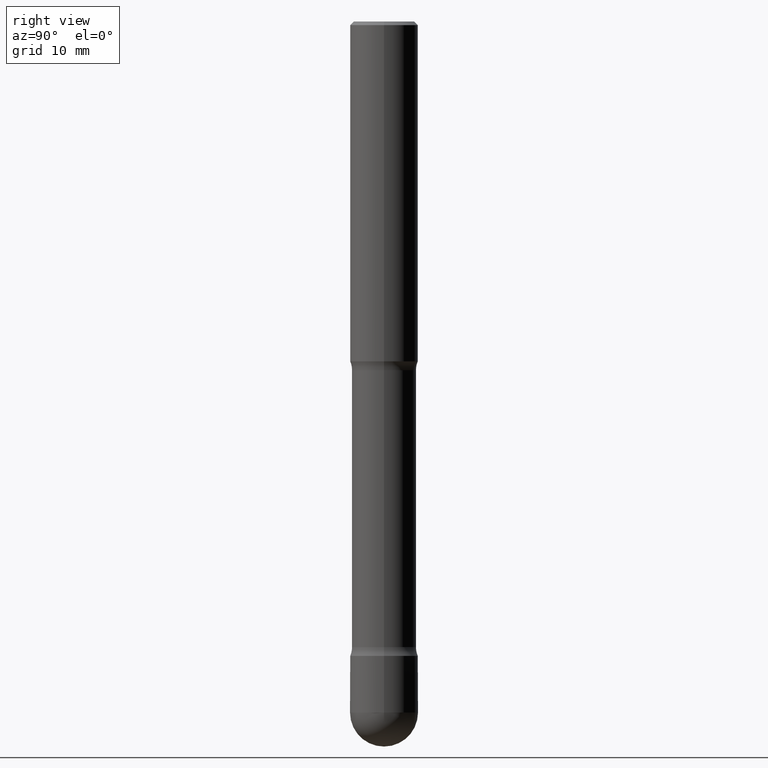
[diagram: clean part render]
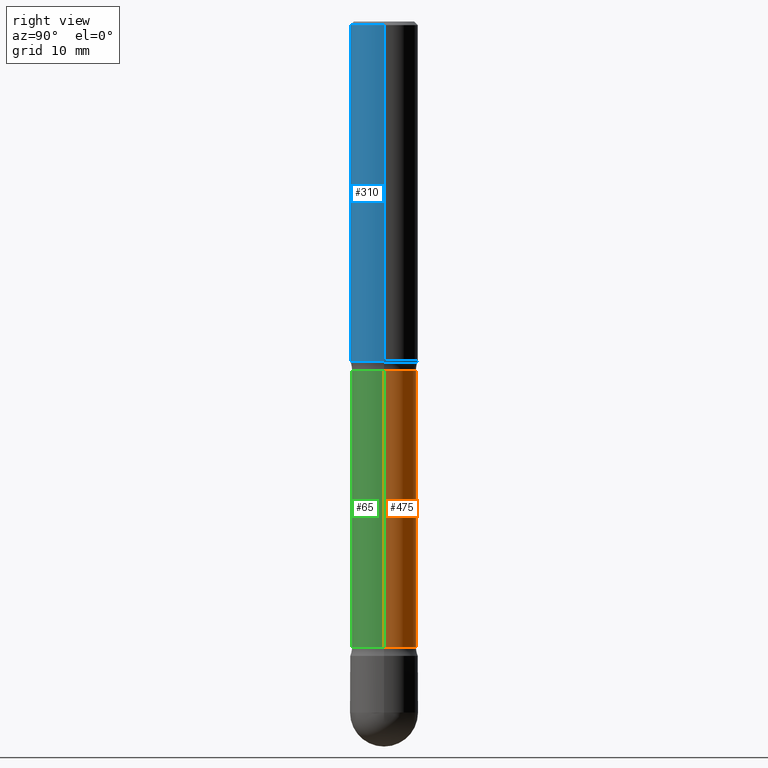
[diagram: same view with three faces highlighted in distinct colors, each labeled with its STEP entity id]
A machine part, right view with three faces highlighted in distinct colors.
Their STEP definitions:

[orange] entity #475 — the highlighted cylindrical surface (edge-blend (fillet) strip) has radius 4.5085 mm, axis along (0, -0, -1).
#12 = CARTESIAN_POINT ( 'NONE',  ( 8.559140821647976968E-29, -1.222018468595100934E-14, -3.500000000000000000 ) ) ;
#73 = AXIS2_PLACEMENT_3D ( 'NONE', #299, #513, #81 ) ;
#80 = ORIENTED_EDGE ( 'NONE', *, *, #250, .F. ) ;
#81 = DIRECTION ( 'NONE',  ( -1.000000000000000000, 6.982962677686269077E-15, 0.000000000000000000 ) ) ;
#96 = EDGE_CURVE ( 'NONE', #348, #301, #288, .T. ) ;
#141 = FACE_OUTER_BOUND ( 'NONE', #315, .T. ) ;
#144 = VERTEX_POINT ( 'NONE', #247 ) ;
#150 = CYLINDRICAL_SURFACE ( 'NONE', #403, 0.1774999999999998246 ) ;
#152 = CARTESIAN_POINT ( 'NONE',  ( 0.1774999999999998246, -1.343792308055545500E-14, -3.500000000000000000 ) ) ;
#177 = CARTESIAN_POINT ( 'NONE',  ( 0.1774999999999996025, -7.884091872190356263E-15, -1.923989794855663904 ) ) ;
#180 = ORIENTED_EDGE ( 'NONE', *, *, #560, .T. ) ;
#183 = LINE ( 'NONE', #286, #484 ) ;
#185 = CARTESIAN_POINT ( 'NONE',  ( 4.705057026738065659E-29, -6.717574464863202053E-15, -1.923989794855663904 ) ) ;
#192 = DIRECTION ( 'NONE',  ( 2.445468806185136597E-29, -3.491481338843145583E-15, -1.000000000000000000 ) ) ;
#214 = ORIENTED_EDGE ( 'NONE', *, *, #96, .T. ) ;
#247 = CARTESIAN_POINT ( 'NONE',  ( -0.1775000000000000189, -1.080966185612939350E-14, -3.451010205144336762 ) ) ;
#250 = EDGE_CURVE ( 'NONE', #144, #301, #556, .T. ) ;
#286 = CARTESIAN_POINT ( 'NONE',  ( -0.1774999999999998246, -1.098070881066169763E-14, -3.500000000000000000 ) ) ;
#288 = LINE ( 'NONE', #152, #420 ) ;
#289 = DIRECTION ( 'NONE',  ( -1.000000000000000000, 6.982962677686269077E-15, 0.000000000000000000 ) ) ;
#299 = CARTESIAN_POINT ( 'NONE',  ( 8.439337806507044109E-29, -1.204913773141870678E-14, -3.451010205144336762 ) ) ;
#301 = VERTEX_POINT ( 'NONE', #384 ) ;
#315 = EDGE_LOOP ( 'NONE', ( #180, #214, #80, #344 ) ) ;
#316 = DIRECTION ( 'NONE',  ( 2.445468806185136877E-29, -3.491481338843145188E-15, -1.000000000000000000 ) ) ;
#317 = AXIS2_PLACEMENT_3D ( 'NONE', #185, #501, #289 ) ;
#322 = VERTEX_POINT ( 'NONE', #342 ) ;
#342 = CARTESIAN_POINT ( 'NONE',  ( -0.1774999999999996025, -5.478098589573891921E-15, -1.923989794855663904 ) ) ;
#344 = ORIENTED_EDGE ( 'NONE', *, *, #506, .F. ) ;
#348 = VERTEX_POINT ( 'NONE', #177 ) ;
#384 = CARTESIAN_POINT ( 'NONE',  ( 0.1775000000000000189, -1.060109449274539731E-14, -3.451010205144336762 ) ) ;
#397 = DIRECTION ( 'NONE',  ( -1.000000000000000000, 6.982962677686265922E-15, 0.000000000000000000 ) ) ;
#403 = AXIS2_PLACEMENT_3D ( 'NONE', #12, #192, #397 ) ;
#420 = VECTOR ( 'NONE', #543, 39.37007874015748143 ) ;
#430 = CIRCLE ( 'NONE', #317, 0.1774999999999996025 ) ;
#475 = ADVANCED_FACE ( 'NONE', ( #141 ), #150, .T. ) ;
#484 = VECTOR ( 'NONE', #316, 39.37007874015748143 ) ;
#501 = DIRECTION ( 'NONE',  ( 2.445468806185136597E-29, -3.491481338843145583E-15, -1.000000000000000000 ) ) ;
#506 = EDGE_CURVE ( 'NONE', #322, #144, #183, .T. ) ;
#513 = DIRECTION ( 'NONE',  ( 2.445468806185136597E-29, -3.491481338843145583E-15, -1.000000000000000000 ) ) ;
#543 = DIRECTION ( 'NONE',  ( 2.445468806185136877E-29, -3.491481338843145188E-15, -1.000000000000000000 ) ) ;
#556 = CIRCLE ( 'NONE', #73, 0.1775000000000000189 ) ;
#560 = EDGE_CURVE ( 'NONE', #322, #348, #430, .T. ) ;

[blue] entity #310 — the highlighted cylindrical surface (edge-blend (fillet) strip) has radius 4.7625 mm, axis along (0, -0, -1).
#1 = VECTOR ( 'NONE', #376, 39.37007874015748143 ) ;
#9 = CARTESIAN_POINT ( 'NONE',  ( 0.1874999999999997502, -1.356173001359022508E-15, -0.01999999999999978531 ) ) ;
#33 = CYLINDRICAL_SURFACE ( 'NONE', #273, 0.1874999999999998890 ) ;
#63 = EDGE_CURVE ( 'NONE', #382, #125, #131, .T. ) ;
#98 = CARTESIAN_POINT ( 'NONE',  ( 0.1875000000000000278, -4.594521943136043171E-15, -1.875000000000001776 ) ) ;
#104 = DIRECTION ( 'NONE',  ( -1.000000000000000000, 6.982962677686266711E-15, 0.000000000000000000 ) ) ;
#108 = LINE ( 'NONE', #203, #459 ) ;
#117 = EDGE_CURVE ( 'NONE', #481, #382, #108, .T. ) ;
#125 = VERTEX_POINT ( 'NONE', #539 ) ;
#127 = CARTESIAN_POINT ( 'NONE',  ( 8.559140821647976968E-29, -1.222018468595100934E-14, -3.500000000000000000 ) ) ;
#131 = CIRCLE ( 'NONE', #318, 0.1875000000000000278 ) ;
#154 = AXIS2_PLACEMENT_3D ( 'NONE', #237, #527, #320 ) ;
#155 = LINE ( 'NONE', #330, #1 ) ;
#176 = EDGE_CURVE ( 'NONE', #514, #125, #155, .T. ) ;
#193 = ORIENTED_EDGE ( 'NONE', *, *, #117, .F. ) ;
#194 = CARTESIAN_POINT ( 'NONE',  ( -0.1874999999999997502, 1.239475875289310921E-15, -0.01999999999999978531 ) ) ;
#203 = CARTESIAN_POINT ( 'NONE',  ( 0.1874999999999998890, -1.350652806053316993E-14, -3.500000000000000000 ) ) ;
#228 = EDGE_LOOP ( 'NONE', ( #193, #307, #405, #359 ) ) ;
#237 = CARTESIAN_POINT ( 'NONE',  ( 4.890937612370220610E-31, -6.982962677686216421E-17, -0.01999999999999978531 ) ) ;
#260 = DIRECTION ( 'NONE',  ( 2.445468806185136597E-29, -3.491481338843145583E-15, -1.000000000000000000 ) ) ;
#273 = AXIS2_PLACEMENT_3D ( 'NONE', #127, #260, #561 ) ;
#307 = ORIENTED_EDGE ( 'NONE', *, *, #422, .T. ) ;
#310 = ADVANCED_FACE ( 'NONE', ( #345 ), #33, .T. ) ;
#318 = AXIS2_PLACEMENT_3D ( 'NONE', #478, #324, #104 ) ;
#320 = DIRECTION ( 'NONE',  ( -1.000000000000000000, 6.982962677686265133E-15, 0.000000000000000000 ) ) ;
#324 = DIRECTION ( 'NONE',  ( 2.445468806185136597E-29, -3.491481338843145583E-15, -1.000000000000000000 ) ) ;
#330 = CARTESIAN_POINT ( 'NONE',  ( -0.1874999999999998890, -1.091087918388483433E-14, -3.500000000000000000 ) ) ;
#345 = FACE_OUTER_BOUND ( 'NONE', #228, .T. ) ;
#359 = ORIENTED_EDGE ( 'NONE', *, *, #63, .F. ) ;
#374 = DIRECTION ( 'NONE',  ( 2.445468806185136877E-29, -3.491481338843145188E-15, -1.000000000000000000 ) ) ;
#376 = DIRECTION ( 'NONE',  ( 2.445468806185136877E-29, -3.491481338843145188E-15, -1.000000000000000000 ) ) ;
#382 = VERTEX_POINT ( 'NONE', #98 ) ;
#393 = CIRCLE ( 'NONE', #154, 0.1874999999999997502 ) ;
#405 = ORIENTED_EDGE ( 'NONE', *, *, #176, .T. ) ;
#422 = EDGE_CURVE ( 'NONE', #481, #514, #393, .T. ) ;
#459 = VECTOR ( 'NONE', #374, 39.37007874015748143 ) ;
#478 = CARTESIAN_POINT ( 'NONE',  ( 4.585254011597135603E-29, -6.546527510330903440E-15, -1.875000000000001776 ) ) ;
#481 = VERTEX_POINT ( 'NONE', #9 ) ;
#514 = VERTEX_POINT ( 'NONE', #194 ) ;
#527 = DIRECTION ( 'NONE',  ( 2.445468806185136597E-29, -3.491481338843145583E-15, -1.000000000000000000 ) ) ;
#539 = CARTESIAN_POINT ( 'NONE',  ( -0.1875000000000000278, -5.237222008264728432E-15, -1.875000000000001776 ) ) ;
#561 = DIRECTION ( 'NONE',  ( -1.000000000000000000, 6.982962677686266711E-15, 0.000000000000000000 ) ) ;

[green] entity #65 — the highlighted cylindrical surface (edge-blend (fillet) strip) has radius 4.5085 mm, axis along (0, -0, -1).
#25 = AXIS2_PLACEMENT_3D ( 'NONE', #50, #59, #323 ) ;
#28 = DIRECTION ( 'NONE',  ( -1.000000000000000000, 6.982962677686265922E-15, 0.000000000000000000 ) ) ;
#50 = CARTESIAN_POINT ( 'NONE',  ( 8.439337806507044109E-29, -1.204913773141870678E-14, -3.451010205144336762 ) ) ;
#59 = DIRECTION ( 'NONE',  ( 2.445468806185136597E-29, -3.491481338843145583E-15, -1.000000000000000000 ) ) ;
#60 = AXIS2_PLACEMENT_3D ( 'NONE', #373, #157, #28 ) ;
#65 = ADVANCED_FACE ( 'NONE', ( #182 ), #355, .T. ) ;
#96 = EDGE_CURVE ( 'NONE', #348, #301, #288, .T. ) ;
#144 = VERTEX_POINT ( 'NONE', #247 ) ;
#152 = CARTESIAN_POINT ( 'NONE',  ( 0.1774999999999998246, -1.343792308055545500E-14, -3.500000000000000000 ) ) ;
#157 = DIRECTION ( 'NONE',  ( 2.445468806185136597E-29, -3.491481338843145583E-15, -1.000000000000000000 ) ) ;
#163 = CARTESIAN_POINT ( 'NONE',  ( 4.705057026738065659E-29, -6.717574464863202053E-15, -1.923989794855663904 ) ) ;
#177 = CARTESIAN_POINT ( 'NONE',  ( 0.1774999999999996025, -7.884091872190356263E-15, -1.923989794855663904 ) ) ;
#178 = ORIENTED_EDGE ( 'NONE', *, *, #506, .T. ) ;
#182 = FACE_OUTER_BOUND ( 'NONE', #474, .T. ) ;
#183 = LINE ( 'NONE', #286, #484 ) ;
#188 = CIRCLE ( 'NONE', #483, 0.1774999999999996025 ) ;
#189 = EDGE_CURVE ( 'NONE', #348, #322, #188, .T. ) ;
#247 = CARTESIAN_POINT ( 'NONE',  ( -0.1775000000000000189, -1.080966185612939350E-14, -3.451010205144336762 ) ) ;
#274 = ORIENTED_EDGE ( 'NONE', *, *, #96, .F. ) ;
#286 = CARTESIAN_POINT ( 'NONE',  ( -0.1774999999999998246, -1.098070881066169763E-14, -3.500000000000000000 ) ) ;
#288 = LINE ( 'NONE', #152, #420 ) ;
#301 = VERTEX_POINT ( 'NONE', #384 ) ;
#316 = DIRECTION ( 'NONE',  ( 2.445468806185136877E-29, -3.491481338843145188E-15, -1.000000000000000000 ) ) ;
#322 = VERTEX_POINT ( 'NONE', #342 ) ;
#323 = DIRECTION ( 'NONE',  ( -1.000000000000000000, 6.982962677686269077E-15, 0.000000000000000000 ) ) ;
#329 = CIRCLE ( 'NONE', #25, 0.1775000000000000189 ) ;
#333 = DIRECTION ( 'NONE',  ( 2.445468806185136597E-29, -3.491481338843145583E-15, -1.000000000000000000 ) ) ;
#342 = CARTESIAN_POINT ( 'NONE',  ( -0.1774999999999996025, -5.478098589573891921E-15, -1.923989794855663904 ) ) ;
#348 = VERTEX_POINT ( 'NONE', #177 ) ;
#355 = CYLINDRICAL_SURFACE ( 'NONE', #60, 0.1774999999999998246 ) ;
#373 = CARTESIAN_POINT ( 'NONE',  ( 8.559140821647976968E-29, -1.222018468595100934E-14, -3.500000000000000000 ) ) ;
#380 = ORIENTED_EDGE ( 'NONE', *, *, #402, .F. ) ;
#384 = CARTESIAN_POINT ( 'NONE',  ( 0.1775000000000000189, -1.060109449274539731E-14, -3.451010205144336762 ) ) ;
#402 = EDGE_CURVE ( 'NONE', #301, #144, #329, .T. ) ;
#415 = DIRECTION ( 'NONE',  ( -1.000000000000000000, 6.982962677686269077E-15, 0.000000000000000000 ) ) ;
#420 = VECTOR ( 'NONE', #543, 39.37007874015748143 ) ;
#474 = EDGE_LOOP ( 'NONE', ( #274, #552, #178, #380 ) ) ;
#483 = AXIS2_PLACEMENT_3D ( 'NONE', #163, #333, #415 ) ;
#484 = VECTOR ( 'NONE', #316, 39.37007874015748143 ) ;
#506 = EDGE_CURVE ( 'NONE', #322, #144, #183, .T. ) ;
#543 = DIRECTION ( 'NONE',  ( 2.445468806185136877E-29, -3.491481338843145188E-15, -1.000000000000000000 ) ) ;
#552 = ORIENTED_EDGE ( 'NONE', *, *, #189, .T. ) ;